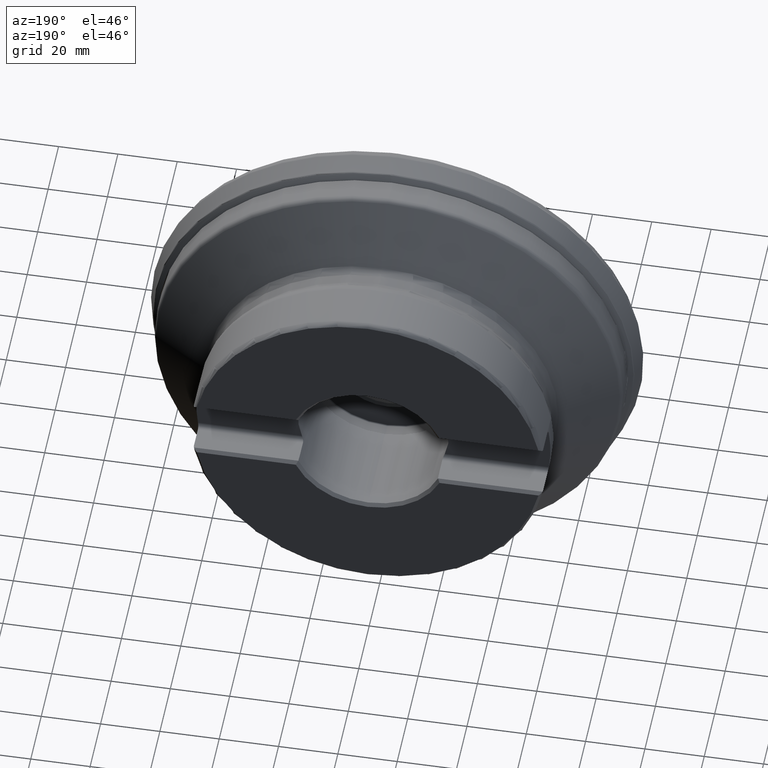
[diagram: clean part render]
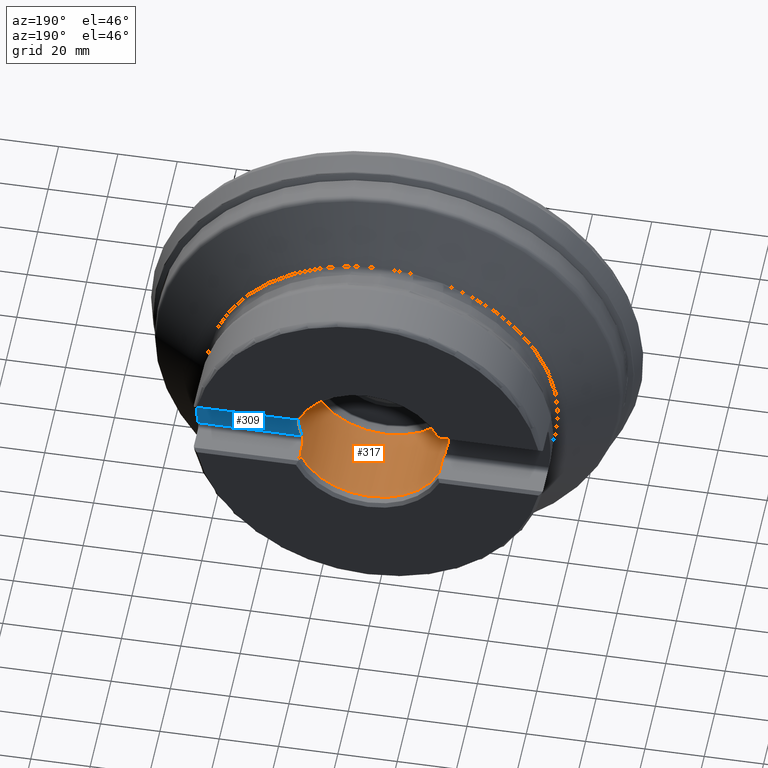
[diagram: same view with the hole feature highlighted: cylindrical wall and planar end face, labeled with their STEP entity ids]
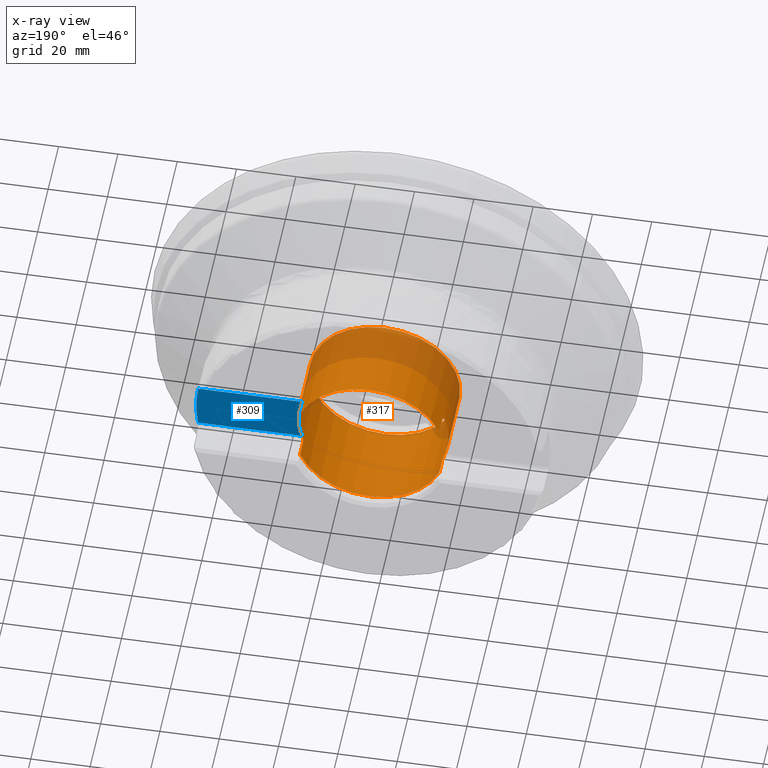
[diagram: x-ray of the same camera — body ghosted, the hole faces saturated]
A machine part, auxiliary view. The highlighted faces form one hole feature of diameter 50.8 mm: the cylindrical wall (entity #317, orange) and its adjacent planar end face (entity #309, blue) — they share a circular edge in the B-rep.
The next image is the same camera in x-ray (body ghosted, the hole faces saturated) — the bore reads through the body.
Wall:
#215=B_SPLINE_CURVE_WITH_KNOTS('',3,(#1568,#1569,#1570,#1571,#1572,#1573,
#1574,#1575,#1576,#1577,#1578,#1579,#1580,#1581,#1582,#1583,#1584,#1585,
#1586),.UNSPECIFIED.,.F.,.F.,(4,3,3,3,3,3,4),(0.,0.0525235581088812,0.262683970720079,
0.488405385321343,0.720876312876975,0.949772467933239,1.),.UNSPECIFIED.);
#216=B_SPLINE_CURVE_WITH_KNOTS('',3,(#1588,#1589,#1590,#1591,#1592,#1593,
#1594,#1595,#1596,#1597,#1598,#1599,#1600,#1601,#1602,#1603),
 .UNSPECIFIED.,.F.,.F.,(4,3,3,3,3,4),(0.,0.186315552714649,0.403984807365987,
0.607087803595339,0.803316677576536,1.),.UNSPECIFIED.);
#217=B_SPLINE_CURVE_WITH_KNOTS('',3,(#1613,#1614,#1615,#1616,#1617,#1618,
#1619,#1620,#1621,#1622,#1623,#1624,#1625,#1626,#1627,#1628,#1629,#1630,
#1631),.UNSPECIFIED.,.F.,.F.,(4,3,3,3,3,3,4),(0.,0.0240704118090365,0.25086923685319,
0.464310182560009,0.663938729967874,0.856333163987827,1.),.UNSPECIFIED.);
#218=B_SPLINE_CURVE_WITH_KNOTS('',3,(#1637,#1638,#1639,#1640,#1641,#1642,
#1643,#1644,#1645,#1646,#1647,#1648,#1649,#1650,#1651,#1652),
 .UNSPECIFIED.,.F.,.F.,(4,3,3,3,3,4),(0.,0.119667557125217,0.335491605391153,
0.564778224447049,0.797083839635493,1.),.UNSPECIFIED.);
#265=LINE('',#1674,#289);
#267=LINE('',#1691,#291);
#269=LINE('',#1708,#293);
#271=LINE('',#1725,#295);
#289=VECTOR('',#1212,1.);
#291=VECTOR('',#1216,1.);
#293=VECTOR('',#1220,1.);
#295=VECTOR('',#1224,1.);
#317=ADVANCED_FACE('',(#387,#388),#374,.F.);
#374=CYLINDRICAL_SURFACE('',#1073,25.4);
#387=FACE_BOUND('',#483,.T.);
#388=FACE_BOUND('',#484,.T.);
#483=EDGE_LOOP('',(#654));
#484=EDGE_LOOP('',(#655,#656,#657,#658,#659,#660,#661,#662,#663,#664,#665,
#666));
#654=ORIENTED_EDGE('',*,*,#932,.F.);
#655=ORIENTED_EDGE('',*,*,#933,.T.);
#656=ORIENTED_EDGE('',*,*,#931,.T.);
#657=ORIENTED_EDGE('',*,*,#910,.F.);
#658=ORIENTED_EDGE('',*,*,#908,.T.);
#659=ORIENTED_EDGE('',*,*,#913,.F.);
#660=ORIENTED_EDGE('',*,*,#923,.T.);
#661=ORIENTED_EDGE('',*,*,#934,.T.);
#662=ORIENTED_EDGE('',*,*,#919,.T.);
#663=ORIENTED_EDGE('',*,*,#905,.F.);
#664=ORIENTED_EDGE('',*,*,#901,.T.);
#665=ORIENTED_EDGE('',*,*,#904,.F.);
#666=ORIENTED_EDGE('',*,*,#927,.T.);
#812=VERTEX_POINT('',#1561);
#813=VERTEX_POINT('',#1563);
#814=VERTEX_POINT('',#1567);
#815=VERTEX_POINT('',#1604);
#816=VERTEX_POINT('',#1608);
#817=VERTEX_POINT('',#1610);
#818=VERTEX_POINT('',#1632);
#819=VERTEX_POINT('',#1636);
#823=VERTEX_POINT('',#1667);
#827=VERTEX_POINT('',#1690);
#830=VERTEX_POINT('',#1707);
#832=VERTEX_POINT('',#1718);
#834=VERTEX_POINT('',#1728);
#901=EDGE_CURVE('',#813,#812,#992,.T.);
#904=EDGE_CURVE('',#814,#812,#215,.T.);
#905=EDGE_CURVE('',#813,#815,#216,.T.);
#908=EDGE_CURVE('',#817,#816,#993,.T.);
#910=EDGE_CURVE('',#817,#818,#217,.T.);
#913=EDGE_CURVE('',#819,#816,#218,.T.);
#919=EDGE_CURVE('',#823,#815,#265,.T.);
#923=EDGE_CURVE('',#819,#827,#267,.T.);
#927=EDGE_CURVE('',#814,#830,#269,.T.);
#931=EDGE_CURVE('',#832,#818,#271,.T.);
#932=EDGE_CURVE('',#834,#834,#996,.T.);
#933=EDGE_CURVE('',#830,#832,#997,.T.);
#934=EDGE_CURVE('',#827,#823,#998,.T.);
#992=CIRCLE('',#1055,25.4);
#993=CIRCLE('',#1059,25.4);
#996=CIRCLE('',#1070,25.4);
#997=CIRCLE('',#1071,25.4);
#998=CIRCLE('',#1072,25.4);
#1055=AXIS2_PLACEMENT_3D('',#1562,#1182,#1183);
#1059=AXIS2_PLACEMENT_3D('',#1609,#1194,#1195);
#1070=AXIS2_PLACEMENT_3D('',#1727,#1227,#1228);
#1071=AXIS2_PLACEMENT_3D('',#1729,#1229,#1230);
#1072=AXIS2_PLACEMENT_3D('',#1730,#1231,#1232);
#1073=AXIS2_PLACEMENT_3D('',#1731,#1233,#1234);
#1182=DIRECTION('',(2.80161754078923E-17,1.,4.51372080642067E-19));
#1183=DIRECTION('',(5.55111512312578E-17,0.,1.));
#1194=DIRECTION('',(2.80161754078923E-17,1.,4.51372080642067E-19));
#1195=DIRECTION('',(5.55111512312578E-17,0.,1.));
#1212=DIRECTION('',(-2.80161754078923E-17,-1.,-4.51372080642067E-19));
#1216=DIRECTION('',(2.80161754078923E-17,1.,4.51372080642067E-19));
#1220=DIRECTION('',(2.80161754078923E-17,1.,4.51372080642067E-19));
#1224=DIRECTION('',(-2.80161754078923E-17,-1.,-4.51372080642067E-19));
#1227=DIRECTION('',(2.80161754078923E-17,1.,4.51372080642067E-19));
#1228=DIRECTION('',(-5.55111512312578E-17,0.,-1.));
#1229=DIRECTION('',(2.80161754078923E-17,1.,4.51372080642067E-19));
#1230=DIRECTION('',(-5.55111512312578E-17,0.,-1.));
#1231=DIRECTION('',(2.80161754078923E-17,1.,4.51372080642067E-19));
#1232=DIRECTION('',(-5.55111512312578E-17,0.,-1.));
#1233=DIRECTION('',(-2.80161754078923E-17,-1.,-4.51372080642067E-19));
#1234=DIRECTION('',(-5.55111512312578E-17,4.51372080642069E-19,-1.));
#1561=CARTESIAN_POINT('',(-24.0654186541602,52.,8.125));
#1562=CARTESIAN_POINT('',(1.4568411212104E-15,52.,2.34713481933875E-17));
#1563=CARTESIAN_POINT('',(-24.0654186541602,52.,-8.125));
#1567=CARTESIAN_POINT('',(-23.4645344083363,53.6,9.725));
#1568=CARTESIAN_POINT('',(-23.4645344083363,53.6,9.725));
#1569=CARTESIAN_POINT('',(-23.4645344083363,53.5543339130323,9.725));
#1570=CARTESIAN_POINT('',(-23.46534696581,53.5086190454724,9.72304014312328));
#1571=CARTESIAN_POINT('',(-23.4669636337018,53.4631488259487,9.71913668051418));
#1572=CARTESIAN_POINT('',(-23.4733696064877,53.2829751549602,9.7036693879606));
#1573=CARTESIAN_POINT('',(-23.4929928650715,53.1032768146334,9.65637567711943));
#1574=CARTESIAN_POINT('',(-23.5229501344741,52.9406796148398,9.58283971331289));
#1575=CARTESIAN_POINT('',(-23.5550984635058,52.766190137566,9.50392536606884));
#1576=CARTESIAN_POINT('',(-23.6000584795809,52.6056547579475,9.39240638013681));
#1577=CARTESIAN_POINT('',(-23.6516934884016,52.472802517969,9.26052887964287));
#1578=CARTESIAN_POINT('',(-23.7049038662736,52.335896994917,9.12462783509268));
#1579=CARTESIAN_POINT('',(-23.7667560528258,52.2238560869582,8.96298634181765));
#1580=CARTESIAN_POINT('',(-23.8303986642615,52.1449503056435,8.79045502248687));
#1581=CARTESIAN_POINT('',(-23.8931279287647,52.0671769158459,8.62039973215159));
#1582=CARTESIAN_POINT('',(-23.9593531160286,52.0192523515922,8.43493283645114));
#1583=CARTESIAN_POINT('',(-24.023235597972,52.0048035259024,8.24888788894195));
#1584=CARTESIAN_POINT('',(-24.0373744066402,52.0016056354057,8.20771143748767));
#1585=CARTESIAN_POINT('',(-24.0514546735748,52.,8.16635988170637));
#1586=CARTESIAN_POINT('',(-24.0654186541602,52.,8.125));
#1588=CARTESIAN_POINT('',(-24.0654186541602,52.,-8.125));
#1589=CARTESIAN_POINT('',(-24.0140709918229,52.,-8.27708652197649));
#1590=CARTESIAN_POINT('',(-23.9607738153514,52.0220265759133,-8.43002119656067));
#1591=CARTESIAN_POINT('',(-23.9085355619428,52.0647780402269,-8.57565899994382));
#1592=CARTESIAN_POINT('',(-23.8474634393377,52.1147590885916,-8.74592521682069));
#1593=CARTESIAN_POINT('',(-23.7864153614632,52.1944174958671,-8.91015084361531));
#1594=CARTESIAN_POINT('',(-23.7307873935857,52.2986992772802,-9.0559223539313));
#1595=CARTESIAN_POINT('',(-23.67883689345,52.3960871723655,-9.19205716444849));
#1596=CARTESIAN_POINT('',(-23.6304029174483,52.517338814371,-9.31535432404898));
#1597=CARTESIAN_POINT('',(-23.5901874532788,52.654989530615,-9.41610619731791));
#1598=CARTESIAN_POINT('',(-23.5513448736716,52.7879410957431,-9.51341858047291));
#1599=CARTESIAN_POINT('',(-23.5192961934521,52.939560186438,-9.59197246977351));
#1600=CARTESIAN_POINT('',(-23.4977186550221,53.0990132151152,-9.64454343188038));
#1601=CARTESIAN_POINT('',(-23.4761130583393,53.2586735878042,-9.69718275439582));
#1602=CARTESIAN_POINT('',(-23.4645344083363,53.4305032900316,-9.725));
#1603=CARTESIAN_POINT('',(-23.4645344083363,53.6,-9.725));
#1604=CARTESIAN_POINT('',(-23.4645344083363,53.6,-9.725));
#1608=CARTESIAN_POINT('',(24.0654186541602,52.,-8.125));
#1609=CARTESIAN_POINT('',(1.4568411212104E-15,52.,2.34713481933875E-17));
#1610=CARTESIAN_POINT('',(24.0654186541602,52.,8.12499999999999));
#1613=CARTESIAN_POINT('',(24.0654186541602,52.,8.12499999999999));
#1614=CARTESIAN_POINT('',(24.0587162534251,52.,8.14485182519119));
#1615=CARTESIAN_POINT('',(24.0519882314489,52.0003695661421,8.16469843820529));
#1616=CARTESIAN_POINT('',(24.0452409194826,52.0011075041483,8.18452131306653));
#1617=CARTESIAN_POINT('',(23.982343788408,52.0079864188527,8.36930630072592));
#1618=CARTESIAN_POINT('',(23.9167502470286,52.0477113347269,8.5546699064607));
#1619=CARTESIAN_POINT('',(23.85404034848,52.1172043054805,8.72609643844766));
#1620=CARTESIAN_POINT('',(23.7949553994189,52.1826802308466,8.8876136493601));
#1621=CARTESIAN_POINT('',(23.7369661802912,52.2762080820509,9.04084548985798));
#1622=CARTESIAN_POINT('',(23.6853141318478,52.3920326116329,9.17419721151061));
#1623=CARTESIAN_POINT('',(23.6369724028574,52.500434082402,9.29900257708292));
#1624=CARTESIAN_POINT('',(23.5930759879322,52.6310177351473,9.40933276276738));
#1625=CARTESIAN_POINT('',(23.5580487730049,52.7755395953389,9.49622756723531));
#1626=CARTESIAN_POINT('',(23.5242979362066,52.9147951349886,9.57995595872498));
#1627=CARTESIAN_POINT('',(23.4980406820881,53.0704722086158,9.6438467684381));
#1628=CARTESIAN_POINT('',(23.4823410003693,53.2312368741003,9.68192445448604));
#1629=CARTESIAN_POINT('',(23.4706200241906,53.3512596139416,9.71035226971845));
#1630=CARTESIAN_POINT('',(23.4645344083363,53.4761009280079,9.725));
#1631=CARTESIAN_POINT('',(23.4645344083363,53.6,9.725));
#1632=CARTESIAN_POINT('',(23.4645344083363,53.6,9.725));
#1636=CARTESIAN_POINT('',(23.4645344083363,53.6,-9.725));
#1637=CARTESIAN_POINT('',(23.4645344083363,53.6,-9.725));
#1638=CARTESIAN_POINT('',(23.4645344083363,53.4958501253004,-9.725));
#1639=CARTESIAN_POINT('',(23.4688098885194,53.3911342092446,-9.71470216515924));
#1640=CARTESIAN_POINT('',(23.4771347873213,53.2892938676055,-9.69454187560971));
#1641=CARTESIAN_POINT('',(23.4919773142019,53.1077219297013,-9.65859793843017));
#1642=CARTESIAN_POINT('',(23.520362913248,52.9309357273692,-9.58972055785068));
#1643=CARTESIAN_POINT('',(23.5581428332718,52.7751516225935,-9.49599422110009));
#1644=CARTESIAN_POINT('',(23.5982667787801,52.609702015311,-9.39645270735103));
#1645=CARTESIAN_POINT('',(23.6501389432627,52.4624166920882,-9.26585639033731));
#1646=CARTESIAN_POINT('',(23.7070856788989,52.3452615192255,-9.11778967806062));
#1647=CARTESIAN_POINT('',(23.7648318721984,52.2264616410132,-8.96764430286339));
#1648=CARTESIAN_POINT('',(23.8294725118563,52.1347995871722,-8.79504838754584));
#1649=CARTESIAN_POINT('',(23.8943922792123,52.0768743335299,-8.61498796326033));
#1650=CARTESIAN_POINT('',(23.9511641153967,52.0262191456779,-8.4575265100363));
#1651=CARTESIAN_POINT('',(24.0094776321874,52.,-8.29069158322661));
#1652=CARTESIAN_POINT('',(24.0654186541602,52.,-8.125));
#1667=CARTESIAN_POINT('',(-23.4645344083363,59.2,-9.725));
#1674=CARTESIAN_POINT('',(-23.4645344083363,3.72908261512808E-15,-9.72500000000002));
#1690=CARTESIAN_POINT('',(23.4645344083363,59.2,-9.725));
#1691=CARTESIAN_POINT('',(23.4645344083363,2.41430959143113E-15,-9.72500000000002));
#1707=CARTESIAN_POINT('',(-23.4645344083363,59.2,9.725));
#1708=CARTESIAN_POINT('',(-23.4645344083363,6.52996918364232E-16,9.725));
#1718=CARTESIAN_POINT('',(23.4645344083363,59.2,9.725));
#1725=CARTESIAN_POINT('',(23.4645344083363,-6.6177610533272E-16,9.725));
#1727=CARTESIAN_POINT('',(8.40541294587586E-16,30.002,1.35420651634233E-17));
#1728=CARTESIAN_POINT('',(-5.69441946686363E-16,30.002,-25.4));
#1729=CARTESIAN_POINT('',(1.65855758414723E-15,59.2,2.67212271740104E-17));
#1730=CARTESIAN_POINT('',(1.65855758414723E-15,59.2,2.67212271740104E-17));
#1731=CARTESIAN_POINT('',(0.,0.,0.));
End face:
#146=PLANE('',#1060);
#184=FACE_OUTER_BOUND('',#474,.T.);
#260=LINE('',#1607,#284);
#261=LINE('',#1611,#285);
#284=VECTOR('',#1193,1.);
#285=VECTOR('',#1196,1.);
#309=ADVANCED_FACE('',(#184),#146,.T.);
#474=EDGE_LOOP('',(#612,#613,#614,#615));
#612=ORIENTED_EDGE('',*,*,#878,.T.);
#613=ORIENTED_EDGE('',*,*,#907,.T.);
#614=ORIENTED_EDGE('',*,*,#908,.F.);
#615=ORIENTED_EDGE('',*,*,#909,.T.);
#792=VERTEX_POINT('',#1417);
#793=VERTEX_POINT('',#1419);
#816=VERTEX_POINT('',#1608);
#817=VERTEX_POINT('',#1610);
#878=EDGE_CURVE('',#793,#792,#983,.T.);
#907=EDGE_CURVE('',#792,#816,#260,.T.);
#908=EDGE_CURVE('',#817,#816,#993,.T.);
#909=EDGE_CURVE('',#817,#793,#261,.T.);
#983=CIRCLE('',#1041,59.69);
#993=CIRCLE('',#1059,25.4);
#1041=AXIS2_PLACEMENT_3D('',#1418,#1151,#1152);
#1059=AXIS2_PLACEMENT_3D('',#1609,#1194,#1195);
#1060=AXIS2_PLACEMENT_3D('',#1612,#1197,#1198);
#1151=DIRECTION('',(2.80161754078923E-17,1.,4.51372080642067E-19));
#1152=DIRECTION('',(-1.,0.,0.));
#1193=DIRECTION('',(-1.,2.80161754078923E-17,5.55111512312578E-17));
#1194=DIRECTION('',(2.80161754078923E-17,1.,4.51372080642067E-19));
#1195=DIRECTION('',(5.55111512312578E-17,0.,1.));
#1196=DIRECTION('',(1.,-2.80161754078923E-17,-5.55111512312578E-17));
#1197=DIRECTION('',(2.80161754078923E-17,1.,4.51372080642067E-19));
#1198=DIRECTION('',(5.55111512312578E-17,0.,1.));
#1417=CARTESIAN_POINT('',(59.1344271554228,52.,-8.125));
#1418=CARTESIAN_POINT('',(0.,52.,0.));
#1419=CARTESIAN_POINT('',(59.1344271554228,52.,8.12499999999999));
#1607=CARTESIAN_POINT('',(-110.,52.,-8.12499999999999));
#1608=CARTESIAN_POINT('',(24.0654186541602,52.,-8.125));
#1609=CARTESIAN_POINT('',(1.4568411212104E-15,52.,2.34713481933875E-17));
#1610=CARTESIAN_POINT('',(24.0654186541602,52.,8.12499999999999));
#1611=CARTESIAN_POINT('',(-110.,52.,8.125));
#1612=CARTESIAN_POINT('',(-110.,52.,-9.72499999999999));